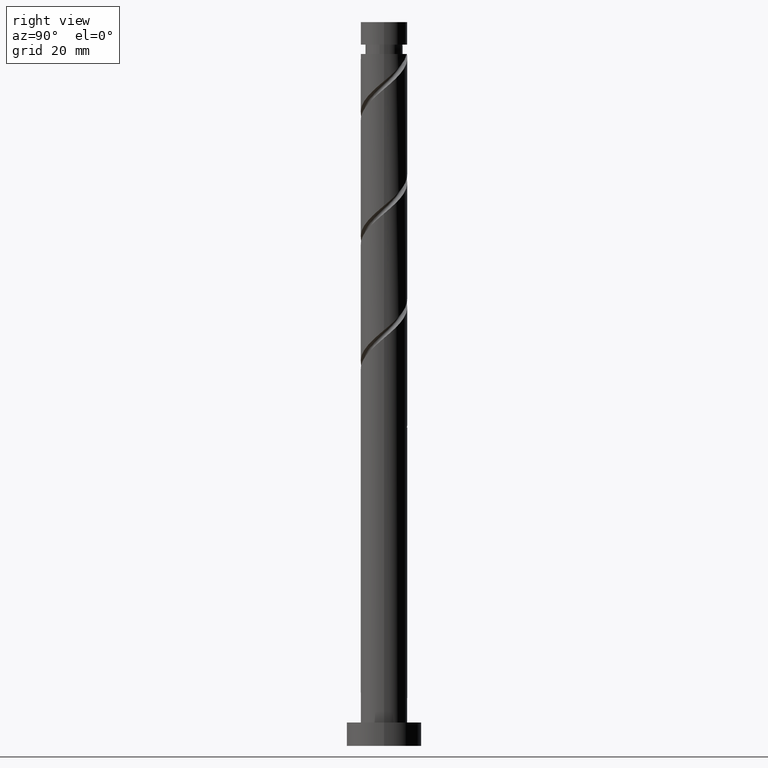
[diagram: clean part render]
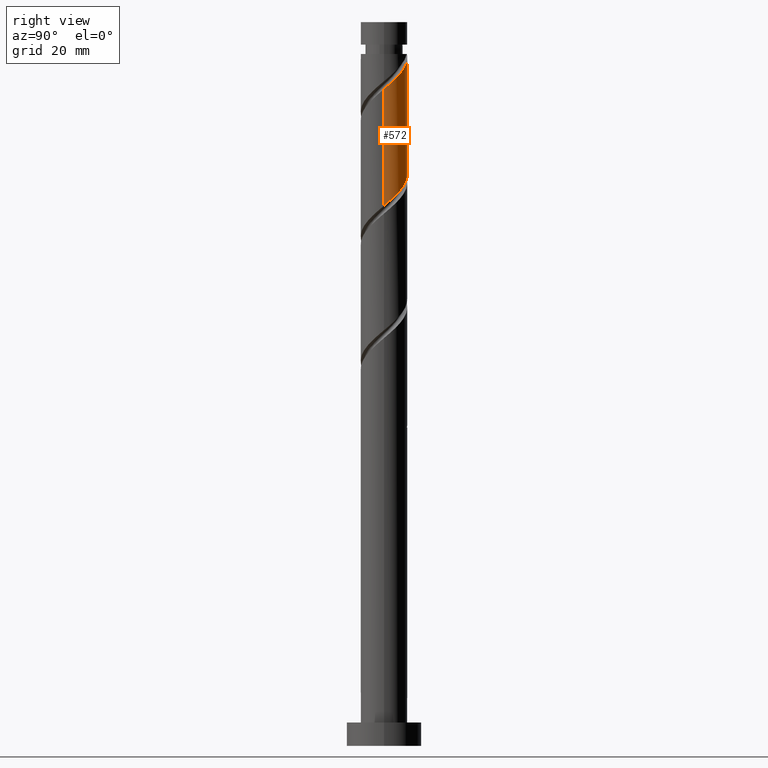
[diagram: same view with one face highlighted and labeled with its STEP entity id]
A machine part, right view. The second image highlights one B-rep face of the part: STEP entity #572.
In plain terms, the highlighted cylindrical surface (edge-blend (fillet) strip) has radius 5 mm, axis along (-0, -0, -1).
Its self-contained STEP definition (entity closure, byte-faithful):
#3 = CARTESIAN_POINT ( 'NONE',  ( 0.2904737965312522707, 5.043057596253619046, 122.1183565575898484 ) ) ;
#14 = CARTESIAN_POINT ( 'NONE',  ( 5.000000000000006217, 0.1438776326191226473, 140.7849394769465903 ) ) ;
#16 = EDGE_CURVE ( 'NONE', #339, #1649, #1316, .T. ) ;
#44 = CARTESIAN_POINT ( 'NONE',  ( 0.4258060737845075217, 4.981835925392195996, 146.9668414060746500 ) ) ;
#126 = CARTESIAN_POINT ( 'NONE',  ( -3.051594711005884086, 3.960778928413059674, 125.1486595878928654 ) ) ;
#127 = CARTESIAN_POINT ( 'NONE',  ( -5.000000000000000000, 0.000000000000000000, 155.0000000000000000 ) ) ;
#134 = CARTESIAN_POINT ( 'NONE',  ( 2.335172983261505131, 4.421195216029886410, 120.3001747394080354 ) ) ;
#162 = CARTESIAN_POINT ( 'NONE',  ( 4.043864058114788662, 2.940605971477221026, 143.3304777697110524 ) ) ;
#163 = DIRECTION ( 'NONE',  ( -0.000000000000000000, -0.000000000000000000, -1.000000000000000000 ) ) ;
#184 = FACE_OUTER_BOUND ( 'NONE', #1600, .T. ) ;
#224 = CARTESIAN_POINT ( 'NONE',  ( 5.000000000000000000, 6.123233995736766282E-16, 155.0000000000000000 ) ) ;
#243 = CARTESIAN_POINT ( 'NONE',  ( 2.970844888841020381, 4.085448028313394708, 119.6941141333474405 ) ) ;
#245 = CARTESIAN_POINT ( 'NONE',  ( 0.000000000000000000, 0.000000000000000000, 148.1789626181958965 ) ) ;
#252 = CARTESIAN_POINT ( 'NONE',  ( -4.043864058114778004, 2.940605971477216585, 126.3607808000140835 ) ) ;
#262 = CARTESIAN_POINT ( 'NONE',  ( 4.354751117665844440, 2.456856264250733446, 117.8759323151656133 ) ) ;
#277 = CARTESIAN_POINT ( 'NONE',  ( -0.9949874371066038670, 4.899999999999838707, 148.1789626181958965 ) ) ;
#310 = EDGE_CURVE ( 'NONE', #1146, #1080, #868, .T. ) ;
#311 = CARTESIAN_POINT ( 'NONE',  ( -4.999999999999999112, -1.510638891053149259E-15, 129.0284170974967992 ) ) ;
#339 = VERTEX_POINT ( 'NONE', #1065 ) ;
#354 = DIRECTION ( 'NONE',  ( -0.000000000000000000, -0.000000000000000000, -1.000000000000000000 ) ) ;
#370 = CARTESIAN_POINT ( 'NONE',  ( 4.870529496359501387, 1.130461155941266949, 116.6638111030443810 ) ) ;
#393 = CARTESIAN_POINT ( 'NONE',  ( 3.051594711005889859, 3.960778928413066780, 144.5425989818322989 ) ) ;
#422 = CARTESIAN_POINT ( 'NONE',  ( 5.000000000000007994, 3.903730203612562477E-15, 140.6628414722283367 ) ) ;
#513 = CARTESIAN_POINT ( 'NONE',  ( -4.466659368005205799, 2.359186096053885517, 126.9668414060747210 ) ) ;
#518 = CARTESIAN_POINT ( 'NONE',  ( -4.999999999999999112, -1.510638891053149259E-15, 129.0284170974967992 ) ) ;
#532 = CARTESIAN_POINT ( 'NONE',  ( 4.991726541412356610, 0.2875171921111920881, 140.9062353454686445 ) ) ;
#535 = CARTESIAN_POINT ( 'NONE',  ( 4.001508515401011934, 3.082974950721432350, 118.4819929212262224 ) ) ;
#541 = CARTESIAN_POINT ( 'NONE',  ( -0.9949874371066038670, 4.899999999999838707, 148.1789626181958965 ) ) ;
#572 = ADVANCED_FACE ( 'NONE', ( #184 ), #1496, .T. ) ;
#617 = CARTESIAN_POINT ( 'NONE',  ( 5.000000000000000000, 7.343798965416794784E-15, 115.6950837641634706 ) ) ;
#618 = AXIS2_PLACEMENT_3D ( 'NONE', #245, #1244, #980 ) ;
#644 = CARTESIAN_POINT ( 'NONE',  ( -3.621068748224353318, 3.522025846900549428, 125.7547201939535029 ) ) ;
#650 = CARTESIAN_POINT ( 'NONE',  ( -2.482120673787417964, 4.399532009925572140, 124.5425989818323131 ) ) ;
#662 = DIRECTION ( 'NONE',  ( -0.000000000000000000, -0.000000000000000000, -1.000000000000000000 ) ) ;
#692 = CARTESIAN_POINT ( 'NONE',  ( 2.482120673787420628, 4.399532009925577469, 145.1486595878928938 ) ) ;
#696 = AXIS2_PLACEMENT_3D ( 'NONE', #1338, #163, #1488 ) ;
#754 = ORIENTED_EDGE ( 'NONE', *, *, #310, .T. ) ;
#781 = CARTESIAN_POINT ( 'NONE',  ( 4.950387810036383840, 1.005219118324888861, 141.5122959515292962 ) ) ;
#786 = CARTESIAN_POINT ( 'NONE',  ( 4.708523589020798816, 1.682202607189387411, 142.1183565575898626 ) ) ;
#831 = CARTESIAN_POINT ( 'NONE',  ( -5.000000000000000000, 0.1438776326191157084, 128.9063190927785740 ) ) ;
#868 = LINE ( 'NONE', #224, #1308 ) ;
#889 = CARTESIAN_POINT ( 'NONE',  ( -0.4258060737845053567, 4.981835925392186226, 122.7244171636504717 ) ) ;
#890 = ORIENTED_EDGE ( 'NONE', *, *, #1588, .F. ) ;
#895 = ORIENTED_EDGE ( 'NONE', *, *, #1134, .T. ) ;
#911 = CARTESIAN_POINT ( 'NONE',  ( 1.812103308943843416, 4.660073132228168546, 145.7547201939534887 ) ) ;
#914 = CARTESIAN_POINT ( 'NONE',  ( 5.000000000000001776, 0.5726446369256160684, 116.1810437171348127 ) ) ;
#926 = ORIENTED_EDGE ( 'NONE', *, *, #1363, .F. ) ;
#941 = CARTESIAN_POINT ( 'NONE',  ( 4.466659368005212905, 2.359186096053887294, 142.7244171636504859 ) ) ;
#980 = DIRECTION ( 'NONE',  ( -1.000000000000000000, 0.000000000000000000, 0.000000000000000000 ) ) ;
#1018 = CARTESIAN_POINT ( 'NONE',  ( 5.000000000000000000, 7.343798965416794784E-15, 115.6950837641634848 ) ) ;
#1022 = CARTESIAN_POINT ( 'NONE',  ( -4.950387810036377623, 1.005219118324889305, 128.1789626181959250 ) ) ;
#1034 = CARTESIAN_POINT ( 'NONE',  ( 3.621068748224361311, 3.522025846900553869, 143.9365383757716756 ) ) ;
#1038 = CARTESIAN_POINT ( 'NONE',  ( -4.708523589020789935, 1.682202607189386523, 127.5729020121353017 ) ) ;
#1065 = CARTESIAN_POINT ( 'NONE',  ( -4.999999999999993783, 0.000000000000000000, 148.1789626181958965 ) ) ;
#1080 = VERTEX_POINT ( 'NONE', #617 ) ;
#1128 =( BOUNDED_CURVE ( )  B_SPLINE_CURVE ( 2, ( #311, #831, #1354, #1022, #1038, #513, #252, #644, #126, #650, #1288, #1560, #889, #3, #1544, #1157, #134, #243, #1283, #535, #262, #1404, #370, #914, #1018 ),
 .UNSPECIFIED., .F., .T. ) 
 B_SPLINE_CURVE_WITH_KNOTS ( ( 3, 2, 2, 2, 2, 2, 2, 2, 2, 2, 2, 2, 3 ),
 ( 0.4295252162417513841, 0.4318181818181818232, 0.4431818181818181768, 0.4545454545454545303, 0.4659090909090908839, 0.4772727272727272929, 0.4886363636363636465, 0.5000000000000000000, 0.5113636363636363535, 0.5227272727272727071, 0.5340909090909090606, 0.5454545454545454142, 0.5545252162417512176 ),
 .UNSPECIFIED. ) 
 CURVE ( )  GEOMETRIC_REPRESENTATION_ITEM ( )  RATIONAL_B_SPLINE_CURVE ( ( 0.9061101570135534633, 0.9072237824201356826, 0.9090909090909131685, 0.8998376744372155178, 0.9090909090909131685, 0.8998376744372155178, 0.9090909090909131685, 0.8998376744372155178, 0.9090909090909131685, 0.8998376744372155178, 0.9090909090909131685, 0.8998376744372155178, 0.9090909090909131685, 0.8998376744372155178, 0.9090909090909131685, 0.8998376744372155178, 0.9090909090909131685, 0.8998376744372155178, 0.9090909090909131685, 0.8998376744372155178, 0.9090909090909131685, 0.8998376744372155178, 0.9090909090909131685, 0.9017048011079930037, 0.9061101570135534633 ) ) 
 REPRESENTATION_ITEM ( '' )  );
#1134 = EDGE_CURVE ( 'NONE', #339, #1298, #1265, .T. ) ;
#1146 = VERTEX_POINT ( 'NONE', #1501 ) ;
#1157 = CARTESIAN_POINT ( 'NONE',  ( 1.699501077681990990, 4.756942403746378112, 120.9062353454686587 ) ) ;
#1203 = CARTESIAN_POINT ( 'NONE',  ( 1.142085944100266204, 4.920614254530760512, 146.3607808000140835 ) ) ;
#1244 = DIRECTION ( 'NONE',  ( -0.000000000000000000, -0.000000000000000000, -1.000000000000000000 ) ) ;
#1265 = CIRCLE ( 'NONE', #618, 4.999999999999993783 ) ;
#1283 = CARTESIAN_POINT ( 'NONE',  ( 3.486176702121014603, 3.584211489517413085, 119.0880535272868030 ) ) ;
#1288 = CARTESIAN_POINT ( 'NONE',  ( -1.812103308943839419, 4.660073132228159665, 123.9365383757716614 ) ) ;
#1298 = VERTEX_POINT ( 'NONE', #541 ) ;
#1308 = VECTOR ( 'NONE', #354, 1000.000000000000000 ) ;
#1316 = LINE ( 'NONE', #127, #1627 ) ;
#1338 = CARTESIAN_POINT ( 'NONE',  ( 0.000000000000000000, 0.000000000000000000, 155.0000000000000000 ) ) ;
#1354 = CARTESIAN_POINT ( 'NONE',  ( -4.991726541412347729, 0.2875171921111933648, 128.7850232242564914 ) ) ;
#1363 = EDGE_CURVE ( 'NONE', #1146, #1298, #1593, .T. ) ;
#1404 = CARTESIAN_POINT ( 'NONE',  ( 4.707993719930679610, 1.830737577780031655, 117.2698717091050185 ) ) ;
#1407 = ORIENTED_EDGE ( 'NONE', *, *, #16, .F. ) ;
#1435 = CARTESIAN_POINT ( 'NONE',  ( -0.2904737965312511050, 5.043057596253627928, 147.5729020121353301 ) ) ;
#1488 = DIRECTION ( 'NONE',  ( -1.000000000000000000, 0.000000000000000000, 0.000000000000000000 ) ) ;
#1496 = CYLINDRICAL_SURFACE ( 'NONE', #696, 5.000000000000000000 ) ;
#1501 = CARTESIAN_POINT ( 'NONE',  ( 5.000000000000007994, 3.903730203612562477E-15, 140.6628414722283367 ) ) ;
#1544 = CARTESIAN_POINT ( 'NONE',  ( 0.9949874371066227408, 4.899999999999999467, 121.5122959515292678 ) ) ;
#1560 = CARTESIAN_POINT ( 'NONE',  ( -1.142085944100262873, 4.920614254530754295, 123.3304777697111234 ) ) ;
#1588 = EDGE_CURVE ( 'NONE', #1649, #1080, #1128, .T. ) ;
#1593 =( BOUNDED_CURVE ( )  B_SPLINE_CURVE ( 2, ( #422, #14, #532, #781, #786, #941, #162, #1034, #393, #692, #911, #1203, #44, #1435, #277 ),
 .UNSPECIFIED., .F., .T. ) 
 B_SPLINE_CURVE_WITH_KNOTS ( ( 3, 2, 2, 2, 2, 2, 2, 3 ),
 ( 0.6795252162417515507, 0.6818181818181818787, 0.6931818181818181213, 0.7045454545454545858, 0.7159090909090908283, 0.7272727272727272929, 0.7386363636363636465, 0.7500000000000000000 ),
 .UNSPECIFIED. ) 
 CURVE ( )  GEOMETRIC_REPRESENTATION_ITEM ( )  RATIONAL_B_SPLINE_CURVE ( ( 0.9061101570135607908, 0.9072237824201428991, 0.9090909090909202739, 0.8998376744372226232, 0.9090909090909202739, 0.8998376744372226232, 0.9090909090909202739, 0.8998376744372226232, 0.9090909090909202739, 0.8998376744372226232, 0.9090909090909202739, 0.8998376744372226232, 0.9090909090909202739, 0.8998376744372226232, 0.9090909090909202739 ) ) 
 REPRESENTATION_ITEM ( '' )  );
#1600 = EDGE_LOOP ( 'NONE', ( #926, #754, #890, #1407, #895 ) ) ;
#1627 = VECTOR ( 'NONE', #662, 1000.000000000000000 ) ;
#1649 = VERTEX_POINT ( 'NONE', #518 ) ;